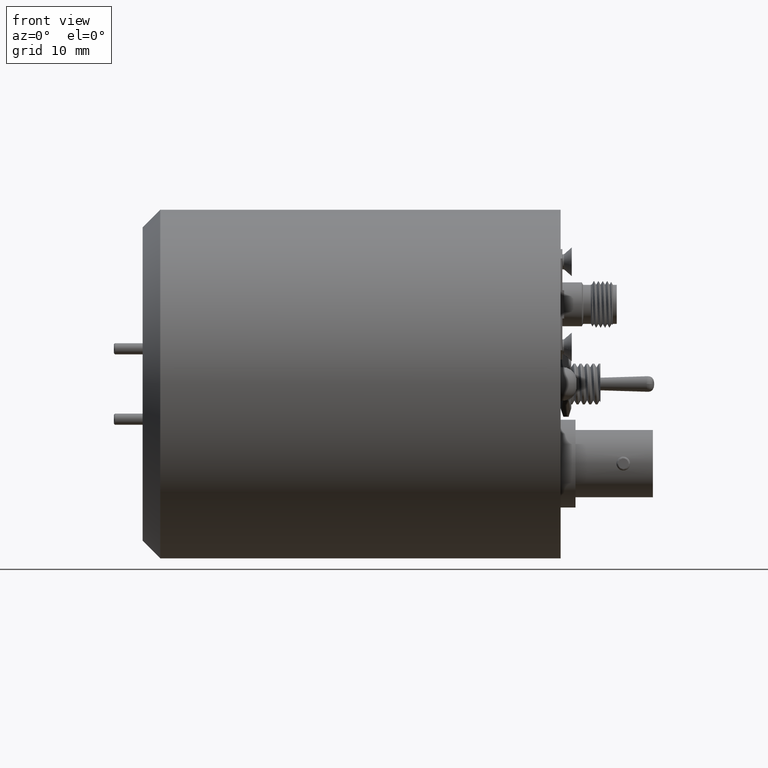
[diagram: clean part render]
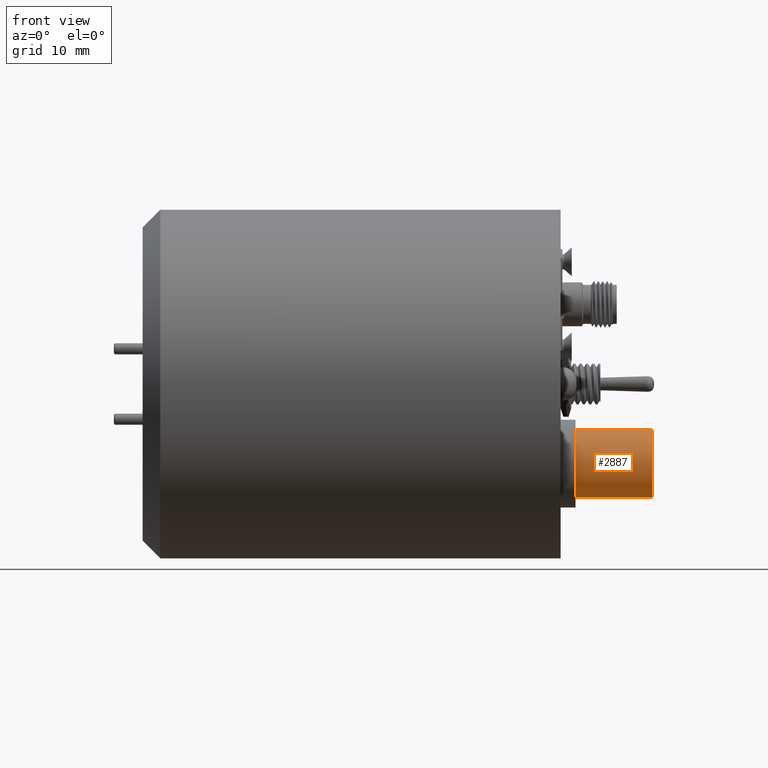
[diagram: same view with one face highlighted and labeled with its STEP entity id]
A machine part, front view. The second image highlights one B-rep face of the part: STEP entity #2887.
In plain terms, the highlighted cylindrical surface (edge-blend (fillet) strip) has radius 4.826 mm, axis along (1, -0, 0).
Its self-contained STEP definition (entity closure, byte-faithful):
#126 = CIRCLE ( 'NONE', #1701, 4.826000000000000500 ) ;
#137 = CARTESIAN_POINT ( 'NONE',  ( 7.998206000000000600, -12.44599999999999800, -11.43000000000000000 ) ) ;
#344 = CARTESIAN_POINT ( 'NONE',  ( 9.979406000000000900, -12.44599999999999800, -11.43000000000000000 ) ) ;
#505 = CARTESIAN_POINT ( 'NONE',  ( 8.489680331835719700, -12.36805473287260600, -10.56467288857448000 ) ) ;
#742 = CARTESIAN_POINT ( 'NONE',  ( 13.23060600000000200, -7.619999999999998300, -6.603999999999999200 ) ) ;
#866 = ORIENTED_EDGE ( 'NONE', *, *, #23011, .F. ) ;
#928 = CIRCLE ( 'NONE', #8654, 4.826000000000000500 ) ;
#971 = ORIENTED_EDGE ( 'NONE', *, *, #1676, .T. ) ;
#1303 = FACE_OUTER_BOUND ( 'NONE', #12614, .T. ) ;
#1676 = EDGE_CURVE ( 'NONE', #17320, #8752, #21539, .T. ) ;
#1701 = AXIS2_PLACEMENT_3D ( 'NONE', #17443, #19892, #19696 ) ;
#2686 = CARTESIAN_POINT ( 'NONE',  ( 8.024325959665660000, -12.44045899908118900, -11.69050396049290800 ) ) ;
#2828 = CARTESIAN_POINT ( 'NONE',  ( 9.487812045659778100, -12.36801575295474500, -10.56444370262425100 ) ) ;
#2887 = ADVANCED_FACE ( 'NONE', ( #1303, #16750 ), #27711, .T. ) ;
#5060 = CARTESIAN_POINT ( 'NONE',  ( 8.489799954340229600, -12.36801575295474500, -12.29555629737575000 ) ) ;
#5108 = CARTESIAN_POINT ( 'NONE',  ( 7.998206000000000600, -12.44599999999999600, -11.29875764597100800 ) ) ;
#5196 = VERTEX_POINT ( 'NONE', #8155 ) ;
#5723 = EDGE_CURVE ( 'NONE', #17320, #5196, #126, .T. ) ;
#7145 = CARTESIAN_POINT ( 'NONE',  ( 8.380809195364689000, -12.38133925055645400, -12.22282204066384600 ) ) ;
#7252 = CARTESIAN_POINT ( 'NONE',  ( 9.853905933864190600, -12.42156203671782500, -11.92973561580976100 ) ) ;
#7402 = CARTESIAN_POINT ( 'NONE',  ( 8.197273345685530900, -12.40825547330671200, -10.82060489671396100 ) ) ;
#7454 = CARTESIAN_POINT ( 'NONE',  ( 8.196651036062471400, -12.40834009144438400, -12.03886567953717400 ) ) ;
#7509 = CARTESIAN_POINT ( 'NONE',  ( 9.117558451594460300, -12.34321679732123700, -10.43929363715180800 ) ) ;
#8155 = CARTESIAN_POINT ( 'NONE',  ( 2.130806000000002400, -7.619999999999998300, -6.603999999999999200 ) ) ;
#8552 = EDGE_CURVE ( 'NONE', #15664, #24347, #8708, .T. ) ;
#8654 = AXIS2_PLACEMENT_3D ( 'NONE', #19049, #14419, #26191 ) ;
#8708 = B_SPLINE_CURVE_WITH_KNOTS ( 'NONE', 3,
 ( #344, #28423, #11758, #7252, #16677, #23447, #14425, #21486, #19153, #25793, #16784, #5060, #7145, #7454, #14228, #2686, #23556, #137 ),
 .UNSPECIFIED., .F., .F.,
 ( 4, 2, 2, 2, 2, 2, 2, 2, 4 ),
 ( 0.0000000000000000000, 0.0003880608249665080500, 0.0007761216499330161000, 0.001164182474899524200, 0.001552243299866032200, 0.001940304124832540300, 0.002328364949799048300, 0.002716425774765556100, 0.003104486599732064400 ),
 .UNSPECIFIED. ) ;
#8752 = VERTEX_POINT ( 'NONE', #10537 ) ;
#9090 = AXIS2_PLACEMENT_3D ( 'NONE', #26447, #29181, #17447 ) ;
#9542 = CARTESIAN_POINT ( 'NONE',  ( 9.596802804635315100, -12.38133925055645600, -10.63717795933615100 ) ) ;
#9960 = CARTESIAN_POINT ( 'NONE',  ( 9.853810211611152800, -12.42154511586890400, -10.93014824644621900 ) ) ;
#10537 = CARTESIAN_POINT ( 'NONE',  ( 13.23060600000000200, -7.619999999999999200, -16.25600000000000000 ) ) ;
#10715 = CARTESIAN_POINT ( 'NONE',  ( -16.34642399999999900, -7.619999999999997400, -6.603999999999999200 ) ) ;
#11758 = CARTESIAN_POINT ( 'NONE',  ( 9.953447260422198200, -12.44049093539101700, -11.69000157686381900 ) ) ;
#12614 = EDGE_LOOP ( 'NONE', ( #866, #26737, #971, #22665 ) ) ;
#14228 = CARTESIAN_POINT ( 'NONE',  ( 8.123801788388851400, -12.42154511586890200, -11.92985175355378400 ) ) ;
#14370 = CARTESIAN_POINT ( 'NONE',  ( 8.727852941563483600, -12.34895271835539400, -10.46572776474633000 ) ) ;
#14419 = DIRECTION ( 'NONE',  ( -1.000000000000000000, 2.775557561562890100E-017, -1.683656803805726100E-033 ) ) ;
#14425 = CARTESIAN_POINT ( 'NONE',  ( 9.487931668164284500, -12.36805473287260800, -12.29532711142551800 ) ) ;
#14471 = CARTESIAN_POINT ( 'NONE',  ( 8.379478705785743400, -12.38152772608540500, -10.63841514461136500 ) ) ;
#15592 = ORIENTED_EDGE ( 'NONE', *, *, #8552, .T. ) ;
#15664 = VERTEX_POINT ( 'NONE', #18586 ) ;
#16677 = CARTESIAN_POINT ( 'NONE',  ( 9.780338654314475000, -12.40825547330671200, -12.03939510328603600 ) ) ;
#16750 = FACE_BOUND ( 'NONE', #29921, .T. ) ;
#16784 = CARTESIAN_POINT ( 'NONE',  ( 8.730077765069715700, -12.34880395620833200, -12.39501525271970600 ) ) ;
#16937 = CARTESIAN_POINT ( 'NONE',  ( 7.998206000000000600, -12.44599999999999800, -11.43000000000000000 ) ) ;
#17174 = VECTOR ( 'NONE', #26401, 1000.000000000000000 ) ;
#17320 = VERTEX_POINT ( 'NONE', #20029 ) ;
#17443 = CARTESIAN_POINT ( 'NONE',  ( 2.130806000000002400, -7.619999999999999200, -11.43000000000000000 ) ) ;
#17447 = DIRECTION ( 'NONE',  ( 0.0000000000000000000, 0.0000000000000000000, -1.000000000000000000 ) ) ;
#18438 = LINE ( 'NONE', #10715, #21345 ) ;
#18586 = CARTESIAN_POINT ( 'NONE',  ( 9.979406000000000900, -12.44599999999999800, -11.43000000000000000 ) ) ;
#19003 = CARTESIAN_POINT ( 'NONE',  ( 8.123706066135806500, -12.42156203671782500, -10.93026438419023300 ) ) ;
#19049 = CARTESIAN_POINT ( 'NONE',  ( 13.23060600000000200, -7.619999999999999200, -11.43000000000000000 ) ) ;
#19153 = CARTESIAN_POINT ( 'NONE',  ( 9.119189958775493200, -12.34326155293266300, -12.42049296538314900 ) ) ;
#19293 = CARTESIAN_POINT ( 'NONE',  ( 9.979406000000004400, -12.44599999999999800, -11.29875891395907100 ) ) ;
#19407 = ORIENTED_EDGE ( 'NONE', *, *, #28087, .T. ) ;
#19696 = DIRECTION ( 'NONE',  ( 0.0000000000000000000, 0.0000000000000000000, -1.000000000000000000 ) ) ;
#19892 = DIRECTION ( 'NONE',  ( -1.000000000000000000, 2.775557561562890100E-017, -1.683656803805726100E-033 ) ) ;
#20029 = CARTESIAN_POINT ( 'NONE',  ( 2.130806000000002400, -7.619999999999999200, -16.25600000000000000 ) ) ;
#20092 = EDGE_CURVE ( 'NONE', #8752, #26414, #928, .T. ) ;
#21215 = CARTESIAN_POINT ( 'NONE',  ( 9.247534234930292000, -12.34880395620833000, -10.46498474728029600 ) ) ;
#21345 = VECTOR ( 'NONE', #29415, 1000.000000000000000 ) ;
#21486 = CARTESIAN_POINT ( 'NONE',  ( 9.249759058436517000, -12.34895271835539400, -12.39427223525366800 ) ) ;
#21537 = CARTESIAN_POINT ( 'NONE',  ( 8.858422041224510900, -12.34326155293266300, -10.43950703461684900 ) ) ;
#21539 = LINE ( 'NONE', #28534, #17174 ) ;
#22665 = ORIENTED_EDGE ( 'NONE', *, *, #20092, .T. ) ;
#23011 = EDGE_CURVE ( 'NONE', #5196, #26414, #18438, .T. ) ;
#23447 = CARTESIAN_POINT ( 'NONE',  ( 9.598133294214257200, -12.38152772608540400, -12.22158485538863500 ) ) ;
#23556 = CARTESIAN_POINT ( 'NONE',  ( 7.998206000000000600, -12.44599999999999800, -11.56124362202930200 ) ) ;
#23910 = CARTESIAN_POINT ( 'NONE',  ( 8.024164739577807700, -12.44049093539101700, -11.16999842313618200 ) ) ;
#24347 = VERTEX_POINT ( 'NONE', #29452 ) ;
#24496 = B_SPLINE_CURVE_WITH_KNOTS ( 'NONE', 3,
 ( #16937, #5108, #23910, #19003, #7402, #14471, #505, #14370, #21537, #7509, #21215, #2828, #9542, #25940, #9960, #26244, #19293, #28264 ),
 .UNSPECIFIED., .F., .F.,
 ( 4, 2, 2, 2, 2, 2, 2, 2, 4 ),
 ( 0.003104486599732064400, 0.003492543675478314600, 0.003880600751224564900, 0.004268657826970815100, 0.004656714902717065300, 0.005044771978463315600, 0.005432829054209564900, 0.005820886129955815100, 0.006208943205702065400 ),
 .UNSPECIFIED. ) ;
#25793 = CARTESIAN_POINT ( 'NONE',  ( 8.860053548405543800, -12.34321679732123700, -12.42070636284819200 ) ) ;
#25940 = CARTESIAN_POINT ( 'NONE',  ( 9.780960963937532800, -12.40834009144438400, -10.82113432046282500 ) ) ;
#26191 = DIRECTION ( 'NONE',  ( 0.0000000000000000000, 0.0000000000000000000, -1.000000000000000000 ) ) ;
#26244 = CARTESIAN_POINT ( 'NONE',  ( 9.953286040334340600, -12.44045899908119200, -11.16949603950709900 ) ) ;
#26401 = DIRECTION ( 'NONE',  ( 1.000000000000000000, -2.775557561562890100E-017, 1.683656803805726100E-033 ) ) ;
#26414 = VERTEX_POINT ( 'NONE', #742 ) ;
#26447 = CARTESIAN_POINT ( 'NONE',  ( -16.34642399999999900, -7.619999999999998300, -11.43000000000000000 ) ) ;
#26737 = ORIENTED_EDGE ( 'NONE', *, *, #5723, .F. ) ;
#27711 = CYLINDRICAL_SURFACE ( 'NONE', #9090, 4.826000000000000500 ) ;
#28087 = EDGE_CURVE ( 'NONE', #24347, #15664, #24496, .T. ) ;
#28264 = CARTESIAN_POINT ( 'NONE',  ( 9.979406000000000900, -12.44599999999999800, -11.43000000000000000 ) ) ;
#28423 = CARTESIAN_POINT ( 'NONE',  ( 9.979406000000006200, -12.44599999999999400, -11.56124235402898900 ) ) ;
#28534 = CARTESIAN_POINT ( 'NONE',  ( -16.34642399999999900, -7.619999999999998300, -16.25600000000000000 ) ) ;
#29181 = DIRECTION ( 'NONE',  ( 1.000000000000000000, -2.775557561562890100E-017, 1.683656803805726100E-033 ) ) ;
#29415 = DIRECTION ( 'NONE',  ( 1.000000000000000000, -2.775557561562890100E-017, 1.683656803805726100E-033 ) ) ;
#29452 = CARTESIAN_POINT ( 'NONE',  ( 7.998206000000000600, -12.44599999999999800, -11.43000000000000000 ) ) ;
#29921 = EDGE_LOOP ( 'NONE', ( #19407, #15592 ) ) ;